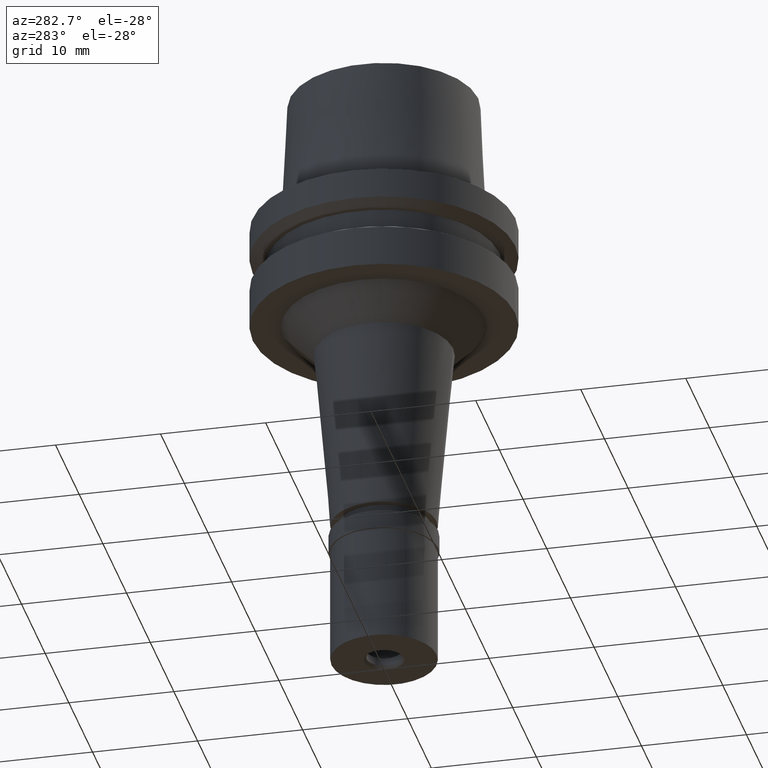
[diagram: clean part render]
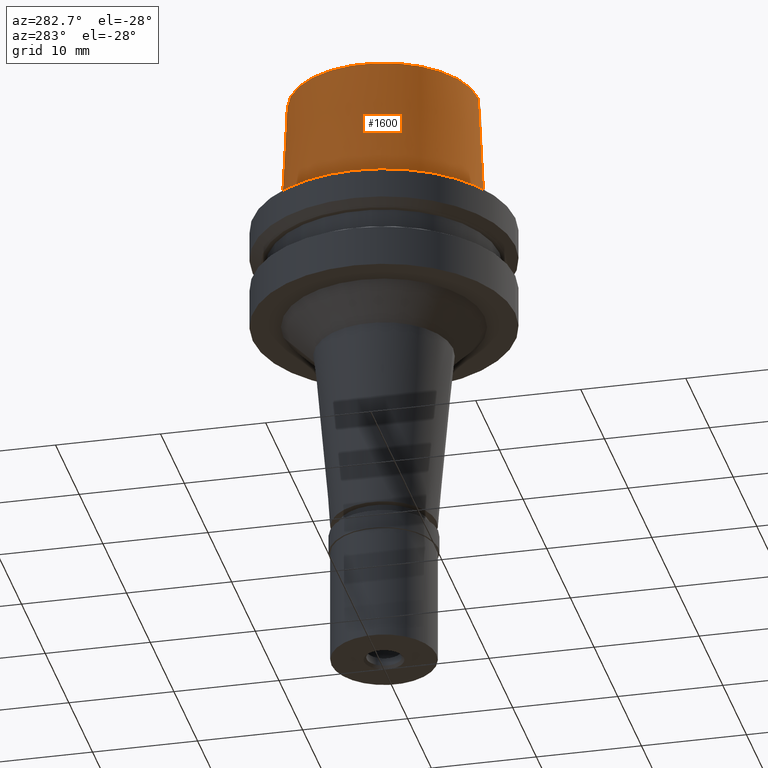
[diagram: same view with one face highlighted and labeled with its STEP entity id]
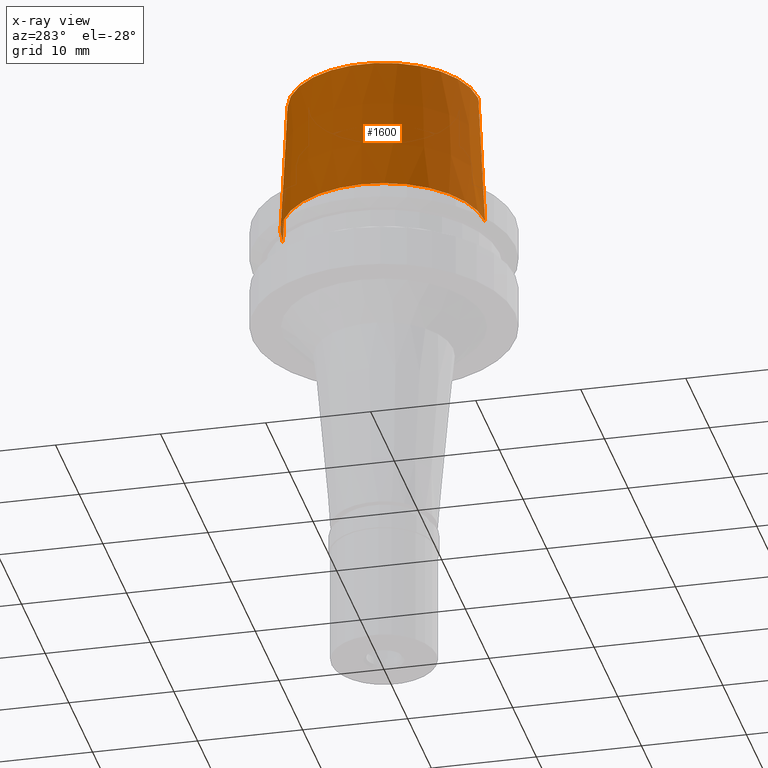
[diagram: x-ray of the same camera — body ghosted, the highlighted face saturated]
A machine part, auxiliary view. The second image highlights one B-rep face of the part: STEP entity #1600.
The next image is the same camera in x-ray: the body ghosted, the highlighted face saturated — about 1% of this face is hidden behind the body in this view.
In plain terms, the highlighted conical surface has half-angle 2.862 deg.
Its self-contained STEP definition (entity closure, byte-faithful):
#275 = CARTESIAN_POINT ( 'NONE',  ( 0.0000000000000000000, -9.624999771398000448, 1.332267629550000037E-13 ) ) ;
#373 = CARTESIAN_POINT ( 'NONE',  ( 0.0000000000000000000, 8.975000960130000038, 13.00000000000000000 ) ) ;
#458 = DIRECTION ( 'NONE',  ( 0.0000000000000000000, 0.0000000000000000000, -1.000000000000000000 ) ) ;
#549 = VERTEX_POINT ( 'NONE', #1078 ) ;
#577 = DIRECTION ( 'NONE',  ( 0.0000000000000000000, 0.04993752584484958956, -0.9987523434327927330 ) ) ;
#644 = FACE_OUTER_BOUND ( 'NONE', #1556, .T. ) ;
#717 = EDGE_CURVE ( 'NONE', #2054, #2397, #1163, .T. ) ;
#733 = AXIS2_PLACEMENT_3D ( 'NONE', #1904, #2310, #1473 ) ;
#796 = CONICAL_SURFACE ( 'NONE', #2174, 9.300000365763999355, 0.04995830450907576964 ) ;
#825 = DIRECTION ( 'NONE',  ( 0.0000000000000000000, 0.0000000000000000000, 1.000000000000000000 ) ) ;
#925 = EDGE_CURVE ( 'NONE', #2054, #549, #1737, .T. ) ;
#1078 = CARTESIAN_POINT ( 'NONE',  ( 0.0000000000000000000, 8.975000960130000038, 13.00000000000000000 ) ) ;
#1163 = LINE ( 'NONE', #2580, #1224 ) ;
#1224 = VECTOR ( 'NONE', #1561, 999.9999999999998863 ) ;
#1231 = CIRCLE ( 'NONE', #2648, 9.624999771398000448 ) ;
#1267 = ORIENTED_EDGE ( 'NONE', *, *, #2566, .T. ) ;
#1340 = EDGE_CURVE ( 'NONE', #1927, #2397, #1231, .T. ) ;
#1346 = CARTESIAN_POINT ( 'NONE',  ( 0.0000000000000000000, -8.975000960130000038, 13.00000000000000000 ) ) ;
#1378 = CARTESIAN_POINT ( 'NONE',  ( 0.0000000000000000000, 9.624999771398000448, 1.332267629550000037E-13 ) ) ;
#1398 = CARTESIAN_POINT ( 'NONE',  ( 0.0000000000000000000, 0.0000000000000000000, 2.557953848736000191E-13 ) ) ;
#1473 = DIRECTION ( 'NONE',  ( 0.0000000000000000000, -1.000000000000000000, 0.0000000000000000000 ) ) ;
#1544 = ORIENTED_EDGE ( 'NONE', *, *, #717, .F. ) ;
#1556 = EDGE_LOOP ( 'NONE', ( #2488, #1544, #2182, #1267 ) ) ;
#1561 = DIRECTION ( 'NONE',  ( 0.0000000000000000000, -0.04993752584484958956, -0.9987523434327927330 ) ) ;
#1600 = ADVANCED_FACE ( 'NONE', ( #644 ), #796, .T. ) ;
#1695 = CARTESIAN_POINT ( 'NONE',  ( 0.0000000000000000000, 0.0000000000000000000, 6.500000000000000000 ) ) ;
#1737 = CIRCLE ( 'NONE', #733, 8.975000960130000038 ) ;
#1804 = DIRECTION ( 'NONE',  ( 0.0000000000000000000, 1.000000000000000000, 0.0000000000000000000 ) ) ;
#1904 = CARTESIAN_POINT ( 'NONE',  ( 0.0000000000000000000, 0.0000000000000000000, 13.00000000000000000 ) ) ;
#1927 = VERTEX_POINT ( 'NONE', #1378 ) ;
#2054 = VERTEX_POINT ( 'NONE', #1346 ) ;
#2073 = DIRECTION ( 'NONE',  ( 0.0000000000000000000, -1.000000000000000000, 0.0000000000000000000 ) ) ;
#2174 = AXIS2_PLACEMENT_3D ( 'NONE', #1695, #458, #2073 ) ;
#2180 = VECTOR ( 'NONE', #577, 999.9999999999998863 ) ;
#2182 = ORIENTED_EDGE ( 'NONE', *, *, #925, .T. ) ;
#2244 = LINE ( 'NONE', #373, #2180 ) ;
#2310 = DIRECTION ( 'NONE',  ( 0.0000000000000000000, 0.0000000000000000000, -1.000000000000000000 ) ) ;
#2397 = VERTEX_POINT ( 'NONE', #275 ) ;
#2488 = ORIENTED_EDGE ( 'NONE', *, *, #1340, .T. ) ;
#2566 = EDGE_CURVE ( 'NONE', #549, #1927, #2244, .T. ) ;
#2580 = CARTESIAN_POINT ( 'NONE',  ( 0.0000000000000000000, -8.975000960130000038, 13.00000000000000000 ) ) ;
#2648 = AXIS2_PLACEMENT_3D ( 'NONE', #1398, #825, #1804 ) ;